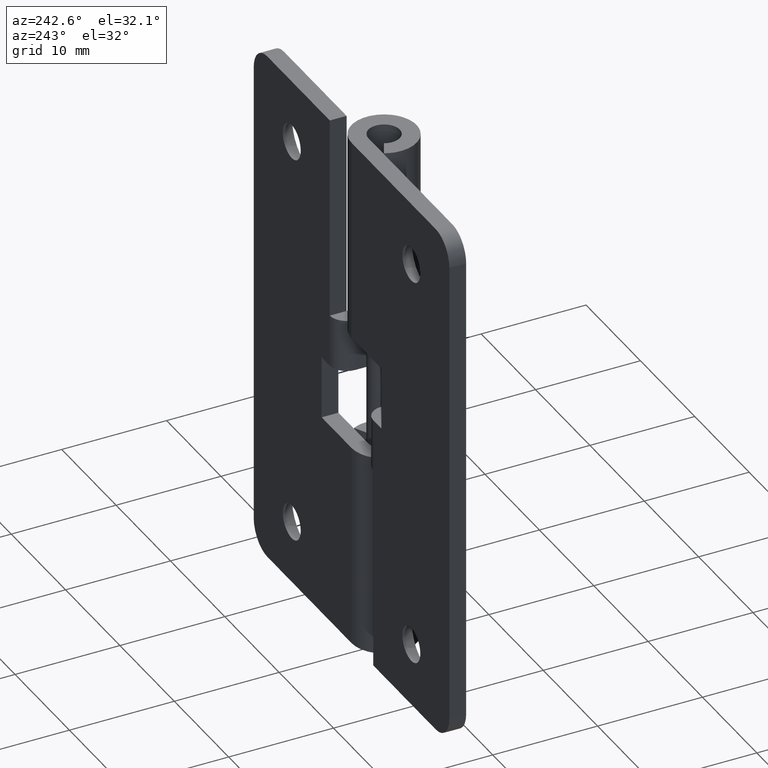
[diagram: clean part render]
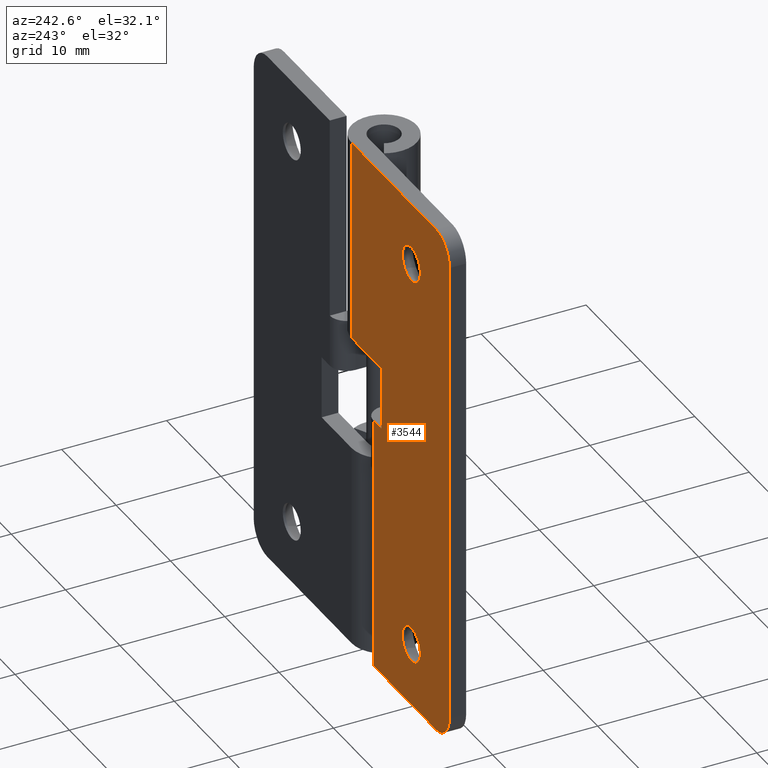
[diagram: same view with one face highlighted and labeled with its STEP entity id]
A machine part, auxiliary view. The second image highlights one B-rep face of the part: STEP entity #3544.
In plain terms, the highlighted face is a freeform B-spline surface patch.
Its self-contained STEP definition (entity closure, byte-faithful):
#2057=CARTESIAN_POINT('',(-12.259866915535010,3.099991000000000,45.065489503456362));
#2058=VERTEX_POINT('',#2057);
#2064=CARTESIAN_POINT('',(-11.0,3.099991000000000,45.650015000000003));
#2065=VERTEX_POINT('',#2064);
#2066=CARTESIAN_POINT('',(-12.259866915535010,3.099991000000000,45.065489503456362));
#2067=CARTESIAN_POINT('',(-12.182742155318460,3.099991000000000,45.156719646646508));
#2068=CARTESIAN_POINT('',(-12.013989224854271,3.099990999999998,45.317125652192608));
#2069=CARTESIAN_POINT('',(-11.751633714386911,3.099991000000002,45.477905902403670));
#2070=CARTESIAN_POINT('',(-11.418057425213449,3.099991000000003,45.611184118852037));
#2071=CARTESIAN_POINT('',(-11.171740572673750,3.099991000000005,45.650115552297827));
#2072=CARTESIAN_POINT('',(-11.0,3.099991000000000,45.650015000000003));
#2073=B_SPLINE_CURVE_WITH_KNOTS('',3,(#2066,#2067,#2068,#2069,#2070,#2071,#2072),.UNSPECIFIED.,.F.,.U.,(4,1,1,1,4),(0.000000024495281,0.358383448023462,0.694379877267104,0.918356046741939,1.433533718609427),.UNSPECIFIED.);
#2074=EDGE_CURVE('',#2058,#2065,#2073,.T.);
#2076=CARTESIAN_POINT('',(-9.350000000000145,3.099991000000000,44.000014308738187));
#2077=VERTEX_POINT('',#2076);
#2078=CARTESIAN_POINT('',(-11.0,3.099991000000000,45.650015000000003));
#2079=CARTESIAN_POINT('',(-10.966260240536590,3.099991000000003,45.650008212687929));
#2080=CARTESIAN_POINT('',(-10.925764400446850,3.099990999999996,45.648818183699433));
#2081=CARTESIAN_POINT('',(-10.878646578336729,3.099991000000002,45.645427769263989));
#2082=CARTESIAN_POINT('',(-10.858450631302521,3.099990999999999,45.643973125457592));
#2083=CARTESIAN_POINT('',(-10.656766499224011,3.099991000000002,45.625505851196380));
#2084=CARTESIAN_POINT('',(-10.346576636841430,3.099990999999998,45.539424933835569));
#2085=CARTESIAN_POINT('',(-9.999705628703490,3.099991000000007,45.325647272314917));
#2086=CARTESIAN_POINT('',(-9.761470583035226,3.099990999999983,45.104335315339640));
#2087=CARTESIAN_POINT('',(-9.591804864382267,3.099991000000037,44.875541583665331));
#2088=CARTESIAN_POINT('',(-9.409148621978456,3.099990999999950,44.512843121736410));
#2089=CARTESIAN_POINT('',(-9.349765896941360,3.099991000000044,44.216043785021377));
#2090=CARTESIAN_POINT('',(-9.350000000000145,3.099991000000000,44.000014308738187));
#2091=B_SPLINE_CURVE_WITH_KNOTS('',3,(#2078,#2079,#2080,#2081,#2082,#2083,#2084,#2085,#2086,#2087,#2088,#2089,#2090),.UNSPECIFIED.,.F.,.U.,(4,1,1,1,1,1,1,1,1,1,4),(0.000087984513611,0.101311398493595,0.121560437170167,0.141809475846738,0.162072238353197,0.729031998265870,1.093511298503079,1.376968434301935,1.700940289938108,1.943928099271892,2.591874288441547),.UNSPECIFIED.);
#2092=EDGE_CURVE('',#2065,#2077,#2091,.T.);
#2094=CARTESIAN_POINT('',(-11.0,3.099991000000000,42.350015000000013));
#2095=VERTEX_POINT('',#2094);
#2096=CARTESIAN_POINT('',(-9.350000000000145,3.099991000000000,44.000014308738187));
#2097=CARTESIAN_POINT('',(-9.350006773039004,3.099991000000000,43.966274559559757));
#2098=CARTESIAN_POINT('',(-9.351196786203953,3.099990999999997,43.925778730194061));
#2099=CARTESIAN_POINT('',(-9.354587175900019,3.099991000000000,43.878660924962233));
#2100=CARTESIAN_POINT('',(-9.356010998014591,3.099991000000000,43.858457354026392));
#2101=CARTESIAN_POINT('',(-9.369653461250032,3.099991000000005,43.710583408217012));
#2102=CARTESIAN_POINT('',(-9.424836036917760,3.099990999999991,43.465085701620353));
#2103=CARTESIAN_POINT('',(-9.575625082179208,3.099991000000023,43.146269153444550));
#2104=CARTESIAN_POINT('',(-9.777626655787829,3.099990999999955,42.873898518696727));
#2105=CARTESIAN_POINT('',(-10.031980884837679,3.099991000000045,42.648979818606193));
#2106=CARTESIAN_POINT('',(-10.338841046384800,3.099990999999968,42.475151268670018));
#2107=CARTESIAN_POINT('',(-10.662527657014360,3.099991000000015,42.372611679948882));
#2108=CARTESIAN_POINT('',(-10.892011952750311,3.099990999999998,42.350003880508638));
#2109=CARTESIAN_POINT('',(-11.0,3.099991000000000,42.350015000000013));
#2110=B_SPLINE_CURVE_WITH_KNOTS('',3,(#2096,#2097,#2098,#2099,#2100,#2101,#2102,#2103,#2104,#2105,#2106,#2107,#2108,#2109),.UNSPECIFIED.,.F.,.U.,(4,1,1,1,1,1,1,1,1,1,1,4),(0.000087984720026,0.101311368174891,0.121560400769949,0.141809433365007,0.162072189712111,0.567041079403377,0.891023883216809,1.214996533101063,1.579447409189981,1.903429461232120,2.267910380695223,2.591873509207329),.UNSPECIFIED.);
#2111=EDGE_CURVE('',#2077,#2095,#2110,.T.);
#2113=CARTESIAN_POINT('',(-12.135784886794330,3.099991000000000,42.803147370969903));
#2114=VERTEX_POINT('',#2113);
#2115=CARTESIAN_POINT('',(-11.0,3.099991000000000,42.350015000000013));
#2116=CARTESIAN_POINT('',(-11.117439669871830,3.099991000000001,42.350006276373087));
#2117=CARTESIAN_POINT('',(-11.391482504874510,3.099990999999996,42.379345024682138));
#2118=CARTESIAN_POINT('',(-11.786855846804199,3.099991000000014,42.526312034650992));
#2119=CARTESIAN_POINT('',(-12.031685766691631,3.099990999999987,42.704318495584729));
#2120=CARTESIAN_POINT('',(-12.135784886794330,3.099991000000000,42.803147370969903));
#2121=B_SPLINE_CURVE_WITH_KNOTS('',3,(#2115,#2116,#2117,#2118,#2119,#2120),.UNSPECIFIED.,.F.,.U.,(4,1,1,4),(8.308863E-009,0.352332955760854,0.822110053101558,1.252739318919072),.UNSPECIFIED.);
#2122=EDGE_CURVE('',#2095,#2114,#2121,.T.);
#2222=CARTESIAN_POINT('',(-12.649999999999860,3.099991000000000,44.000015691261808));
#2223=VERTEX_POINT('',#2222);
#2224=CARTESIAN_POINT('',(-12.135784886794330,3.099991000000000,42.803147370969903));
#2225=CARTESIAN_POINT('',(-12.267414591518721,3.099991000000001,42.927901172040258));
#2226=CARTESIAN_POINT('',(-12.446164297763261,3.099990999999995,43.164966321633017));
#2227=CARTESIAN_POINT('',(-12.612747293352520,3.099991000000008,43.581574524069580));
#2228=CARTESIAN_POINT('',(-12.650060767729361,3.099990999999991,43.846569349225547));
#2229=CARTESIAN_POINT('',(-12.649999999999860,3.099991000000000,44.000015691261808));
#2230=B_SPLINE_CURVE_WITH_KNOTS('',3,(#2224,#2225,#2226,#2227,#2228,#2229),.UNSPECIFIED.,.F.,.U.,(4,1,1,4),(0.000000019685483,0.544019466481376,0.878789464060549,1.339113522671680),.UNSPECIFIED.);
#2231=EDGE_CURVE('',#2114,#2223,#2230,.T.);
#2233=CARTESIAN_POINT('',(-12.649999999999860,3.099991000000000,44.000015691261808));
#2234=CARTESIAN_POINT('',(-12.650201922799431,3.099991000000001,44.205159270621969));
#2235=CARTESIAN_POINT('',(-12.576982276487470,3.099990999999992,44.591087090684212));
#2236=CARTESIAN_POINT('',(-12.376829282273439,3.099991000000009,44.927359958096332));
#2237=CARTESIAN_POINT('',(-12.259866915535010,3.099991000000000,45.065489503456362));
#2238=B_SPLINE_CURVE_WITH_KNOTS('',3,(#2233,#2234,#2235,#2236,#2237),.UNSPECIFIED.,.F.,.U.,(4,1,4),(0.000000010359746,0.615352265274436,1.158313891115134),.UNSPECIFIED.);
#2239=EDGE_CURVE('',#2223,#2058,#2238,.T.);
#2428=CARTESIAN_POINT('',(-12.259866915535010,3.099991000000000,7.065474503456256));
#2429=VERTEX_POINT('',#2428);
#2435=CARTESIAN_POINT('',(-11.0,3.099991000000000,7.649999999999900));
#2436=VERTEX_POINT('',#2435);
#2437=CARTESIAN_POINT('',(-12.259866915535010,3.099991000000000,7.065474503456256));
#2438=CARTESIAN_POINT('',(-12.197191883970270,3.099990999999998,7.139584225492966));
#2439=CARTESIAN_POINT('',(-12.016146105282830,3.099991000000008,7.318949702548887));
#2440=CARTESIAN_POINT('',(-11.694620697891740,3.099990999999996,7.516009076278321));
#2441=CARTESIAN_POINT('',(-11.328511998577770,3.099991000000001,7.628648501732863));
#2442=CARTESIAN_POINT('',(-11.104527139604009,3.099990999999999,7.650007816422687));
#2443=CARTESIAN_POINT('',(-11.0,3.099991000000000,7.649999999999900));
#2444=B_SPLINE_CURVE_WITH_KNOTS('',3,(#2437,#2438,#2439,#2440,#2441,#2442,#2443),.UNSPECIFIED.,.F.,.U.,(4,1,1,1,4),(0.000000024501786,0.291184557051498,0.761559743070291,1.119949085951036,1.433533718609377),.UNSPECIFIED.);
#2445=EDGE_CURVE('',#2429,#2436,#2444,.T.);
#2447=CARTESIAN_POINT('',(-9.350000000000144,3.099990999999999,5.999999308738101));
#2448=VERTEX_POINT('',#2447);
#2449=CARTESIAN_POINT('',(-11.0,3.099991000000000,7.649999999999900));
#2450=CARTESIAN_POINT('',(-10.966260241365321,3.099991000000001,7.649993209200647));
#2451=CARTESIAN_POINT('',(-10.925764394314831,3.099990999999999,7.648803209500588));
#2452=CARTESIAN_POINT('',(-10.878646601088519,3.099991000000000,7.645412673533407));
#2453=CARTESIAN_POINT('',(-10.858449129077609,3.099991000000006,7.643966412122899));
#2454=CARTESIAN_POINT('',(-10.656770673629319,3.099990999999990,7.625473774209548));
#2455=CARTESIAN_POINT('',(-10.359775373918231,3.099990999999987,7.543084505592513));
#2456=CARTESIAN_POINT('',(-10.022395241303419,3.099991000000028,7.340794891333704));
#2457=CARTESIAN_POINT('',(-9.788944210984031,3.099990999999970,7.134382066591716));
#2458=CARTESIAN_POINT('',(-9.605364395715146,3.099990999999993,6.899130695527743));
#2459=CARTESIAN_POINT('',(-9.411859496601403,3.099991000000014,6.526318180420027));
#2460=CARTESIAN_POINT('',(-9.349759692923218,3.099990999999989,6.216029514447302));
#2461=CARTESIAN_POINT('',(-9.350000000000144,3.099990999999999,5.999999308738101));
#2462=B_SPLINE_CURVE_WITH_KNOTS('',3,(#2449,#2450,#2451,#2452,#2453,#2454,#2455,#2456,#2457,#2458,#2459,#2460,#2461),.UNSPECIFIED.,.F.,.U.,(4,1,1,1,1,1,1,1,1,1,4),(0.000087984513208,0.101311398493135,0.121560437169694,0.141809475846252,0.162072238352701,0.729031998265006,1.053014585457474,1.336474911244287,1.660442623174703,1.943928099271512,2.591874288441554),.UNSPECIFIED.);
#2463=EDGE_CURVE('',#2436,#2448,#2462,.T.);
#2465=CARTESIAN_POINT('',(-11.0,3.099991000000000,4.349999999999901));
#2466=VERTEX_POINT('',#2465);
#2467=CARTESIAN_POINT('',(-9.350000000000144,3.099990999999999,5.999999308738101));
#2468=CARTESIAN_POINT('',(-9.350006776402426,3.099991000000001,5.966259560173786));
#2469=CARTESIAN_POINT('',(-9.351196761317935,3.099991000000001,5.925763725649898));
#2470=CARTESIAN_POINT('',(-9.354587268235202,3.099990999999999,5.878645941822232));
#2471=CARTESIAN_POINT('',(-9.356034010714744,3.099990999999970,5.858448302186769));
#2472=CARTESIAN_POINT('',(-9.374524803712109,3.099991000000113,5.656771272320277));
#2473=CARTESIAN_POINT('',(-9.460576163506781,3.099990999999786,5.346571181212759));
#2474=CARTESIAN_POINT('',(-9.674369408360068,3.099991000000263,4.999705607386166));
#2475=CARTESIAN_POINT('',(-9.895681235971903,3.099990999999643,4.761473191191985));
#2476=CARTESIAN_POINT('',(-10.146256989631310,3.099991000000253,4.575627518499196));
#2477=CARTESIAN_POINT('',(-10.514113390840190,3.099990999999795,4.401608498144828));
#2478=CARTESIAN_POINT('',(-10.810993662042790,3.099991000000070,4.349863809350414));
#2479=CARTESIAN_POINT('',(-11.0,3.099991000000000,4.349999999999901));
#2480=B_SPLINE_CURVE_WITH_KNOTS('',3,(#2467,#2468,#2469,#2470,#2471,#2472,#2473,#2474,#2475,#2476,#2477,#2478,#2479),.UNSPECIFIED.,.F.,.U.,(4,1,1,1,1,1,1,1,1,1,4),(0.000087984721235,0.101311368176147,0.121560400771210,0.141809433366273,0.162072189713371,0.729031779353995,1.093510969700848,1.376968019102533,1.700939778000212,2.024923606286049,2.591873509207340),.UNSPECIFIED.);
#2481=EDGE_CURVE('',#2448,#2466,#2480,.T.);
#2483=CARTESIAN_POINT('',(-12.135784886794330,3.099991000000000,4.803132370969795));
#2484=VERTEX_POINT('',#2483);
#2485=CARTESIAN_POINT('',(-11.0,3.099991000000000,4.349999999999901));
#2486=CARTESIAN_POINT('',(-11.143540377254810,3.099990999999998,4.349968662254751));
#2487=CARTESIAN_POINT('',(-11.443664882780730,3.099990999999998,4.389379079194296));
#2488=CARTESIAN_POINT('',(-11.831623770681709,3.099991000000010,4.554926992323125));
#2489=CARTESIAN_POINT('',(-12.050603568725339,3.099990999999984,4.722287373355490));
#2490=CARTESIAN_POINT('',(-12.135784886794330,3.099991000000000,4.803132370969795));
#2491=B_SPLINE_CURVE_WITH_KNOTS('',3,(#2485,#2486,#2487,#2488,#2489,#2490),.UNSPECIFIED.,.F.,.U.,(4,1,1,4),(8.308873E-009,0.430629274135189,0.900406371469780,1.252739318919069),.UNSPECIFIED.);
#2492=EDGE_CURVE('',#2466,#2484,#2491,.T.);
#2592=CARTESIAN_POINT('',(-12.649999999999860,3.099991000000000,6.000000691261710));
#2593=VERTEX_POINT('',#2592);
#2594=CARTESIAN_POINT('',(-12.135784886794330,3.099991000000000,4.803132370969795));
#2595=CARTESIAN_POINT('',(-12.287709924541600,3.099991000000012,4.947038902345718));
#2596=CARTESIAN_POINT('',(-12.498276516002100,3.099990999999975,5.241682752977004));
#2597=CARTESIAN_POINT('',(-12.630435799832300,3.099991000000029,5.672196356376952));
#2598=CARTESIAN_POINT('',(-12.649999449972650,3.099990999999990,5.909334025691552));
#2599=CARTESIAN_POINT('',(-12.649999999999860,3.099991000000000,6.000000691261710));
#2600=B_SPLINE_CURVE_WITH_KNOTS('',3,(#2594,#2595,#2596,#2597,#2598,#2599),.UNSPECIFIED.,.F.,.U.,(4,1,1,4),(0.000000019682307,0.627712029388517,1.067106953047192,1.339113522671683),.UNSPECIFIED.);
#2601=EDGE_CURVE('',#2484,#2593,#2600,.T.);
#2603=CARTESIAN_POINT('',(-12.649999999999860,3.099991000000000,6.000000691261710));
#2604=CARTESIAN_POINT('',(-12.650031575673850,3.099991000000007,6.132725343572415));
#2605=CARTESIAN_POINT('',(-12.622183345963700,3.099990999999991,6.361952642589229));
#2606=CARTESIAN_POINT('',(-12.496942005006151,3.099991000000011,6.728751604099908));
#2607=CARTESIAN_POINT('',(-12.361206102405889,3.099990999999993,6.945742115658680));
#2608=CARTESIAN_POINT('',(-12.259866915535010,3.099991000000000,7.065474503456256));
#2609=B_SPLINE_CURVE_WITH_KNOTS('',3,(#2603,#2604,#2605,#2606,#2607,#2608),.UNSPECIFIED.,.F.,.U.,(4,1,1,4),(0.000000010360378,0.398173732106620,0.687745038646178,1.158313891115130),.UNSPECIFIED.);
#2610=EDGE_CURVE('',#2593,#2429,#2609,.T.);
#2775=CARTESIAN_POINT('',(-4.0,3.099996500000023,24.500000000000000));
#2776=VERTEX_POINT('',#2775);
#2797=CARTESIAN_POINT('',(-4.0,3.100000625000025,19.500000000000000));
#2798=VERTEX_POINT('',#2797);
#2812=CARTESIAN_POINT('',(-4.0,3.099996500000023,24.500000000000000));
#2813=CARTESIAN_POINT('',(-4.0,3.100000625000025,19.500000000000000));
#2814=QUASI_UNIFORM_CURVE('',1,(#2812,#2813),.UNSPECIFIED.,.F.,.U.);
#2815=EDGE_CURVE('',#2776,#2798,#2814,.T.);
#2926=CARTESIAN_POINT('',(-4.0,3.099996500000035,0.0));
#2927=VERTEX_POINT('',#2926);
#2928=CARTESIAN_POINT('',(-4.0,3.100000625000025,19.500000000000000));
#2929=CARTESIAN_POINT('',(-4.0,3.099996500000035,0.0));
#2930=QUASI_UNIFORM_CURVE('',1,(#2928,#2929),.UNSPECIFIED.,.F.,.U.);
#2931=EDGE_CURVE('',#2798,#2927,#2930,.T.);
#2954=CARTESIAN_POINT('',(-0.007469934341821,3.099991000000000,30.500007999999951));
#2955=VERTEX_POINT('',#2954);
#2956=CARTESIAN_POINT('',(-5.500000000000000,3.099991000000000,30.500008000000001));
#2957=VERTEX_POINT('',#2956);
#2958=CARTESIAN_POINT('',(-0.007469934341821,3.099991000000000,30.500007999999951));
#2959=CARTESIAN_POINT('',(-5.500000000000000,3.099991000000000,30.500008000000001));
#2960=QUASI_UNIFORM_CURVE('',1,(#2958,#2959),.UNSPECIFIED.,.F.,.U.);
#2961=EDGE_CURVE('',#2955,#2957,#2960,.T.);
#3071=CARTESIAN_POINT('',(-5.500000000000000,3.099991000000000,24.500000000000000));
#3072=VERTEX_POINT('',#3071);
#3073=CARTESIAN_POINT('',(-5.500000000000000,3.099991000000000,24.500000000000000));
#3074=CARTESIAN_POINT('',(-4.0,3.099996500000023,24.500000000000000));
#3075=QUASI_UNIFORM_CURVE('',1,(#3073,#3074),.UNSPECIFIED.,.F.,.U.);
#3076=EDGE_CURVE('',#3072,#2776,#3075,.T.);
#3107=CARTESIAN_POINT('',(-5.500000000000000,3.099991000000000,30.500008000000001));
#3108=CARTESIAN_POINT('',(-5.500000000000000,3.099991000000000,24.500000000000000));
#3109=QUASI_UNIFORM_CURVE('',1,(#3107,#3108),.UNSPECIFIED.,.F.,.U.);
#3110=EDGE_CURVE('',#2957,#3072,#3109,.T.);
#3129=CARTESIAN_POINT('',(-18.0,3.099991000000000,47.500014999999998));
#3130=VERTEX_POINT('',#3129);
#3131=CARTESIAN_POINT('',(-15.500000000000000,3.099991000000000,50.000015000000012));
#3132=VERTEX_POINT('',#3131);
#3133=CARTESIAN_POINT('',(-18.0,3.099991000000000,47.500014999999998));
#3134=CARTESIAN_POINT('',(-18.000013969776759,3.099991000000000,47.653409684495003));
#3135=CARTESIAN_POINT('',(-17.970727394622472,3.099991000000000,47.970422807167651));
#3136=CARTESIAN_POINT('',(-17.816267835822440,3.099991000000004,48.503419856149669));
#3137=CARTESIAN_POINT('',(-17.548657694068979,3.099990999999995,48.969073936656557));
#3138=CARTESIAN_POINT('',(-17.174060033934570,3.099991000000002,49.377246301153633));
#3139=CARTESIAN_POINT('',(-16.802186815120820,3.099990999999998,49.653063231869147));
#3140=CARTESIAN_POINT('',(-16.403175035219430,3.099991000000003,49.841748584753823));
#3141=CARTESIAN_POINT('',(-15.980629412560001,3.099990999999997,49.967100913779241));
#3142=CARTESIAN_POINT('',(-15.684078432050359,3.099991000000000,50.000051662926403));
#3143=CARTESIAN_POINT('',(-15.500000000000000,3.099991000000000,50.000015000000012));
#3144=B_SPLINE_CURVE_WITH_KNOTS('',3,(#3133,#3134,#3135,#3136,#3137,#3138,#3139,#3140,#3141,#3142,#3143),.UNSPECIFIED.,.F.,.U.,(4,1,1,1,1,1,1,1,4),(0.000000067680387,0.460186179159016,0.951073761727103,1.656724789693876,2.055540691923190,2.607778391452215,3.037302077969554,3.374788382817831,3.927015457192299),.UNSPECIFIED.);
#3145=EDGE_CURVE('',#3130,#3132,#3144,.T.);
#3192=CARTESIAN_POINT('',(-15.500000000000000,3.099991000000000,0.0));
#3193=VERTEX_POINT('',#3192);
#3194=CARTESIAN_POINT('',(-18.0,3.099991000000000,2.499999999999945));
#3195=VERTEX_POINT('',#3194);
#3196=CARTESIAN_POINT('',(-15.500000000000000,3.099991000000000,0.0));
#3197=CARTESIAN_POINT('',(-15.765902730904850,3.099991000000003,-0.000135388754189));
#3198=CARTESIAN_POINT('',(-16.226011057159042,3.099990999999993,0.074123565347725));
#3199=CARTESIAN_POINT('',(-16.851423723816229,3.099990999999996,0.365257327379960));
#3200=CARTESIAN_POINT('',(-17.346061944204511,3.099991000000022,0.771138540969225));
#3201=CARTESIAN_POINT('',(-17.681411419928921,3.099990999999983,1.241234756938561));
#3202=CARTESIAN_POINT('',(-17.931495120218759,3.099991000000011,1.814936709310860));
#3203=CARTESIAN_POINT('',(-18.000179992900350,3.099990999999997,2.223850027845360));
#3204=CARTESIAN_POINT('',(-18.0,3.099991000000000,2.499999999999945));
#3205=B_SPLINE_CURVE_WITH_KNOTS('',3,(#3196,#3197,#3198,#3199,#3200,#3201,#3202,#3203,#3204),.UNSPECIFIED.,.F.,.U.,(4,1,1,1,1,1,4),(0.000000067678990,0.797672558288233,1.380592256216009,2.055540691922818,2.699821759748620,3.098662003378789,3.927015457192222),.UNSPECIFIED.);
#3206=EDGE_CURVE('',#3193,#3195,#3205,.T.);
#3251=CARTESIAN_POINT('',(-4.0,3.099996500000035,0.0));
#3252=CARTESIAN_POINT('',(-15.500000000000000,3.099991000000000,0.0));
#3253=QUASI_UNIFORM_CURVE('',1,(#3251,#3252),.UNSPECIFIED.,.F.,.U.);
#3254=EDGE_CURVE('',#2927,#3193,#3253,.T.);
#3264=CARTESIAN_POINT('',(-0.007469934341821,3.099991000000000,50.000015000000012));
#3265=VERTEX_POINT('',#3264);
#3266=CARTESIAN_POINT('',(-0.007469934341821,3.099991000000000,50.000015000000012));
#3267=CARTESIAN_POINT('',(-15.500000000000000,3.099991000000000,50.000015000000012));
#3268=QUASI_UNIFORM_CURVE('',1,(#3266,#3267),.UNSPECIFIED.,.F.,.U.);
#3269=EDGE_CURVE('',#3265,#3132,#3268,.T.);
#3389=CARTESIAN_POINT('',(-0.007469934341821,3.099991000000000,50.000015000000012));
#3390=CARTESIAN_POINT('',(-0.007469934341821,3.099991000000000,30.500007999999951));
#3391=QUASI_UNIFORM_CURVE('',1,(#3389,#3390),.UNSPECIFIED.,.F.,.U.);
#3392=EDGE_CURVE('',#3265,#2955,#3391,.T.);
#3460=CARTESIAN_POINT('',(-18.0,3.099991000000000,47.500014999999998));
#3461=CARTESIAN_POINT('',(-18.0,3.099991000000000,2.499999999999945));
#3462=QUASI_UNIFORM_CURVE('',1,(#3460,#3461),.UNSPECIFIED.,.F.,.U.);
#3463=EDGE_CURVE('',#3130,#3195,#3462,.T.);
#3510=CARTESIAN_POINT('',(-18.898726841906619,3.099991000000000,52.497516121704649));
#3511=CARTESIAN_POINT('',(-18.898726841906619,3.099991000000000,-2.497502015774579));
#3512=CARTESIAN_POINT('',(0.891257390162055,3.099991000000000,52.497516121704649));
#3513=CARTESIAN_POINT('',(0.891257390162055,3.099991000000000,-2.497502015774579));
#3514=B_SPLINE_SURFACE_WITH_KNOTS('',1,1,((#3510,#3512),(#3511,#3513)),.UNSPECIFIED.,.F.,.F.,.U.,(2,2),(2,2),(0.0,54.995018137479228),(0.0,19.789984232068669),.UNSPECIFIED.);
#3515=ORIENTED_EDGE('',*,*,#3392,.T.);
#3516=ORIENTED_EDGE('',*,*,#2961,.T.);
#3517=ORIENTED_EDGE('',*,*,#3110,.T.);
#3518=ORIENTED_EDGE('',*,*,#3076,.T.);
#3519=ORIENTED_EDGE('',*,*,#2815,.T.);
#3520=ORIENTED_EDGE('',*,*,#2931,.T.);
#3521=ORIENTED_EDGE('',*,*,#3254,.T.);
#3522=ORIENTED_EDGE('',*,*,#3206,.T.);
#3523=ORIENTED_EDGE('',*,*,#3463,.F.);
#3524=ORIENTED_EDGE('',*,*,#3145,.T.);
#3525=ORIENTED_EDGE('',*,*,#3269,.F.);
#3526=EDGE_LOOP('',(#3515,#3516,#3517,#3518,#3519,#3520,#3521,#3522,#3523,#3524,#3525));
#3527=FACE_OUTER_BOUND('',#3526,.T.);
#3528=ORIENTED_EDGE('',*,*,#2463,.F.);
#3529=ORIENTED_EDGE('',*,*,#2445,.F.);
#3530=ORIENTED_EDGE('',*,*,#2610,.F.);
#3531=ORIENTED_EDGE('',*,*,#2601,.F.);
#3532=ORIENTED_EDGE('',*,*,#2492,.F.);
#3533=ORIENTED_EDGE('',*,*,#2481,.F.);
#3534=EDGE_LOOP('',(#3528,#3529,#3530,#3531,#3532,#3533));
#3535=FACE_BOUND('',#3534,.T.);
#3536=ORIENTED_EDGE('',*,*,#2092,.F.);
#3537=ORIENTED_EDGE('',*,*,#2074,.F.);
#3538=ORIENTED_EDGE('',*,*,#2239,.F.);
#3539=ORIENTED_EDGE('',*,*,#2231,.F.);
#3540=ORIENTED_EDGE('',*,*,#2122,.F.);
#3541=ORIENTED_EDGE('',*,*,#2111,.F.);
#3542=EDGE_LOOP('',(#3536,#3537,#3538,#3539,#3540,#3541));
#3543=FACE_BOUND('',#3542,.T.);
#3544=ADVANCED_FACE('',(#3527,#3535,#3543),#3514,.F.);